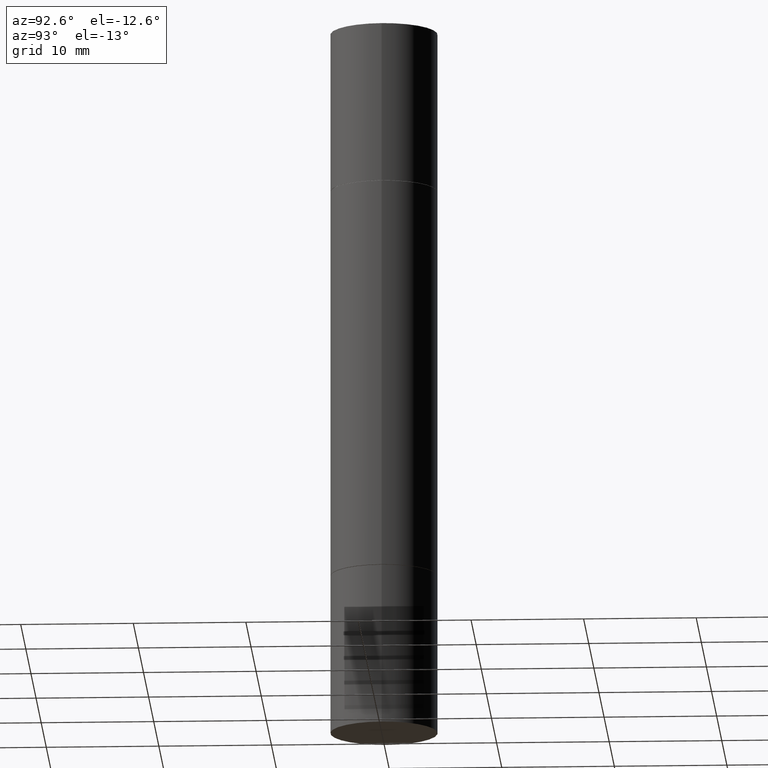
[diagram: clean part render]
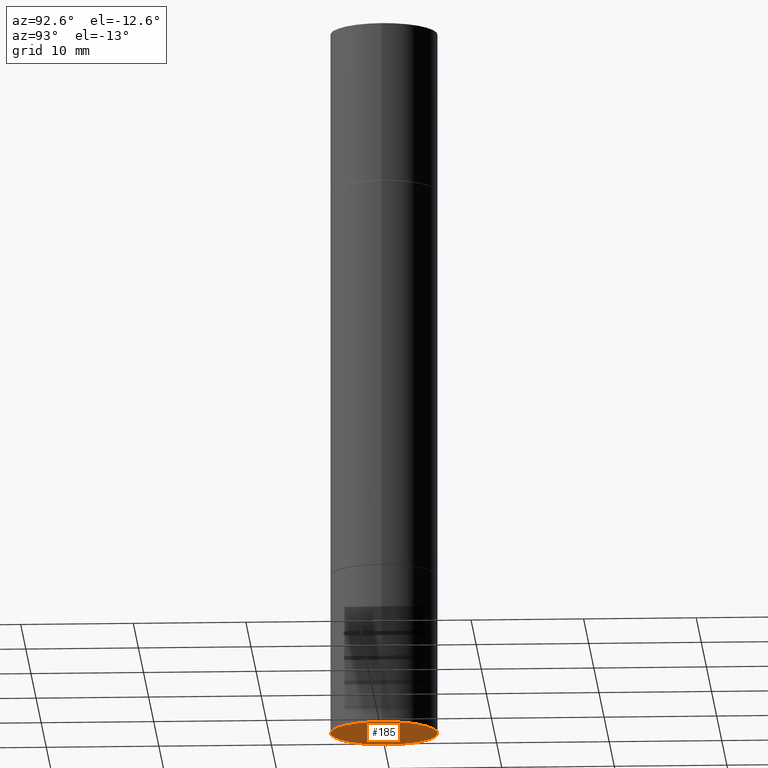
[diagram: same view with one face highlighted and labeled with its STEP entity id]
A machine part, auxiliary view. The second image highlights one B-rep face of the part: STEP entity #185.
In plain terms, the highlighted planar face has unit normal (0, -0, -1).
Its self-contained STEP definition (entity closure, byte-faithful):
#15 = DIRECTION ( 'NONE',  ( 2.438088387897960049E-29, -3.491481338843145188E-15, -1.000000000000000000 ) ) ;
#29 = EDGE_CURVE ( 'NONE', #593, #514, #522, .T. ) ;
#64 = DIRECTION ( 'NONE',  ( -1.000000000000000000, 6.982962677686265922E-15, -4.876176775795935793E-29 ) ) ;
#67 = AXIS2_PLACEMENT_3D ( 'NONE', #300, #393, #129 ) ;
#69 = PLANE ( 'NONE',  #456 ) ;
#129 = DIRECTION ( 'NONE',  ( 1.000000000000000000, -6.982962677686266711E-15, 0.000000000000000000 ) ) ;
#173 = CARTESIAN_POINT ( 'NONE',  ( 6.113672015462842613E-29, -8.728703347107864943E-15, -2.500000000000000000 ) ) ;
#185 = ADVANCED_FACE ( 'NONE', ( #588 ), #69, .T. ) ;
#242 = EDGE_CURVE ( 'NONE', #514, #593, #539, .T. ) ;
#253 = DIRECTION ( 'NONE',  ( -2.445468806185136597E-29, 3.491481338843145583E-15, 1.000000000000000000 ) ) ;
#268 = ORIENTED_EDGE ( 'NONE', *, *, #242, .F. ) ;
#287 = EDGE_LOOP ( 'NONE', ( #268, #537 ) ) ;
#300 = CARTESIAN_POINT ( 'NONE',  ( 6.113672015462842613E-29, -8.728703347107864943E-15, -2.500000000000000000 ) ) ;
#393 = DIRECTION ( 'NONE',  ( -2.445468806185136597E-29, 3.491481338843145583E-15, 1.000000000000000000 ) ) ;
#456 = AXIS2_PLACEMENT_3D ( 'NONE', #488, #15, #64 ) ;
#488 = CARTESIAN_POINT ( 'NONE',  ( 1.309305502066236145E-15, 0.1874999999999912847, -2.500000000000000444 ) ) ;
#514 = VERTEX_POINT ( 'NONE', #576 ) ;
#522 = CIRCLE ( 'NONE', #67, 0.1875000000000000278 ) ;
#537 = ORIENTED_EDGE ( 'NONE', *, *, #29, .F. ) ;
#539 = CIRCLE ( 'NONE', #550, 0.1875000000000000278 ) ;
#550 = AXIS2_PLACEMENT_3D ( 'NONE', #173, #253, #560 ) ;
#560 = DIRECTION ( 'NONE',  ( 1.000000000000000000, -6.982962677686266711E-15, 0.000000000000000000 ) ) ;
#576 = CARTESIAN_POINT ( 'NONE',  ( 0.1875000000000000278, -1.003800884917403995E-14, -2.500000000000000000 ) ) ;
#588 = FACE_OUTER_BOUND ( 'NONE', #287, .T. ) ;
#593 = VERTEX_POINT ( 'NONE', #607 ) ;
#607 = CARTESIAN_POINT ( 'NONE',  ( -0.1875000000000000278, -6.415329461342752645E-15, -2.500000000000000000 ) ) ;